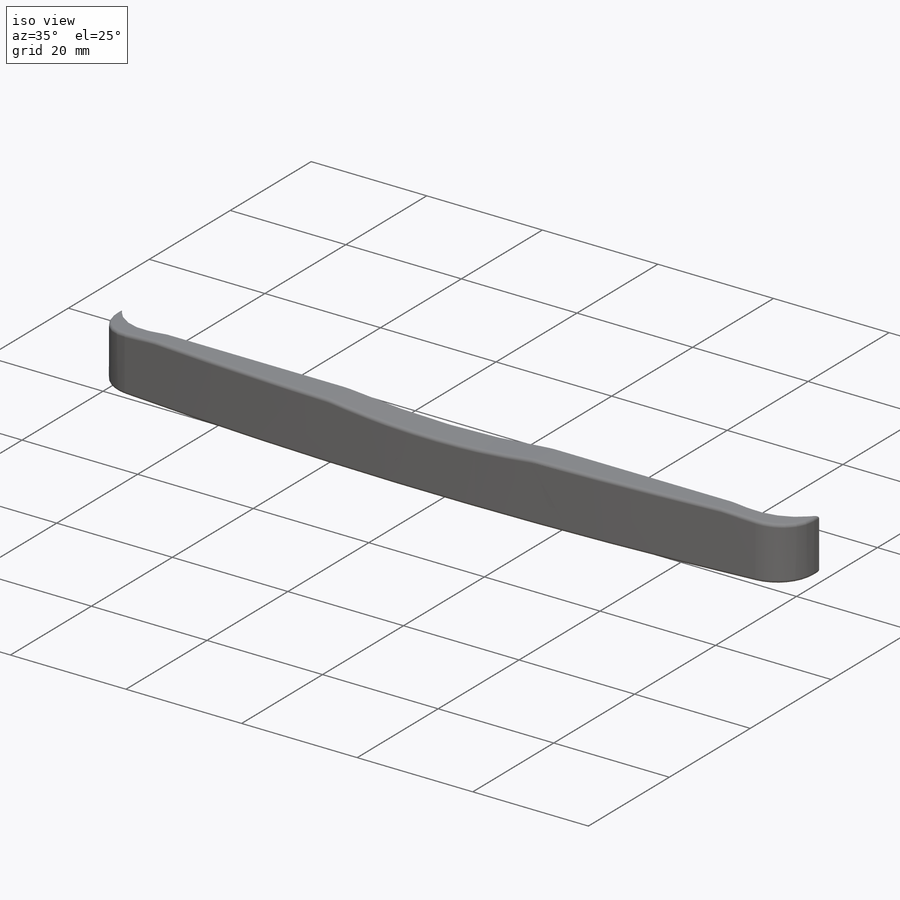
[diagram: iso view]
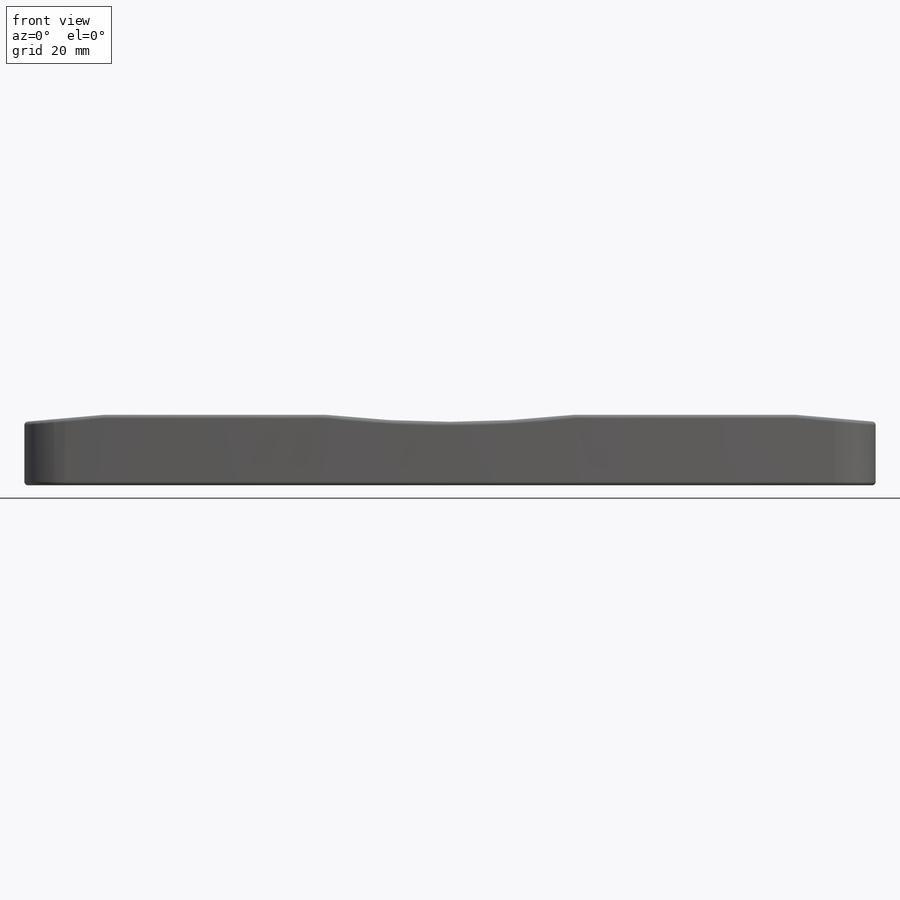
[diagram: front view]
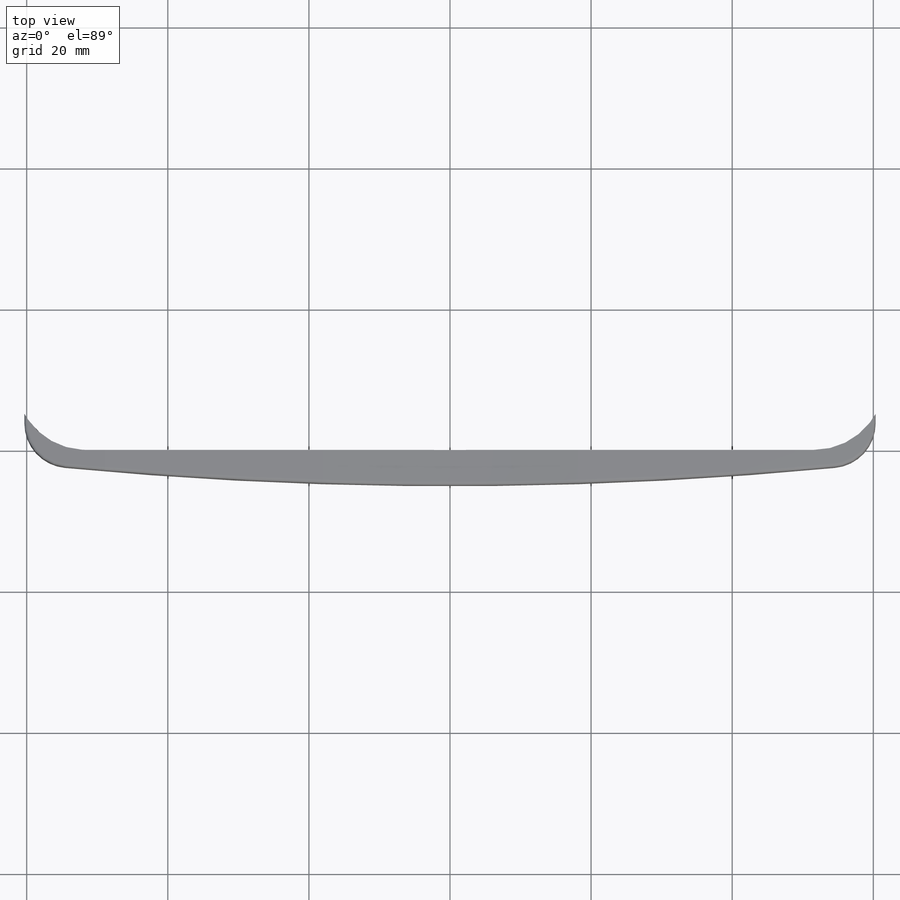
[diagram: top view]
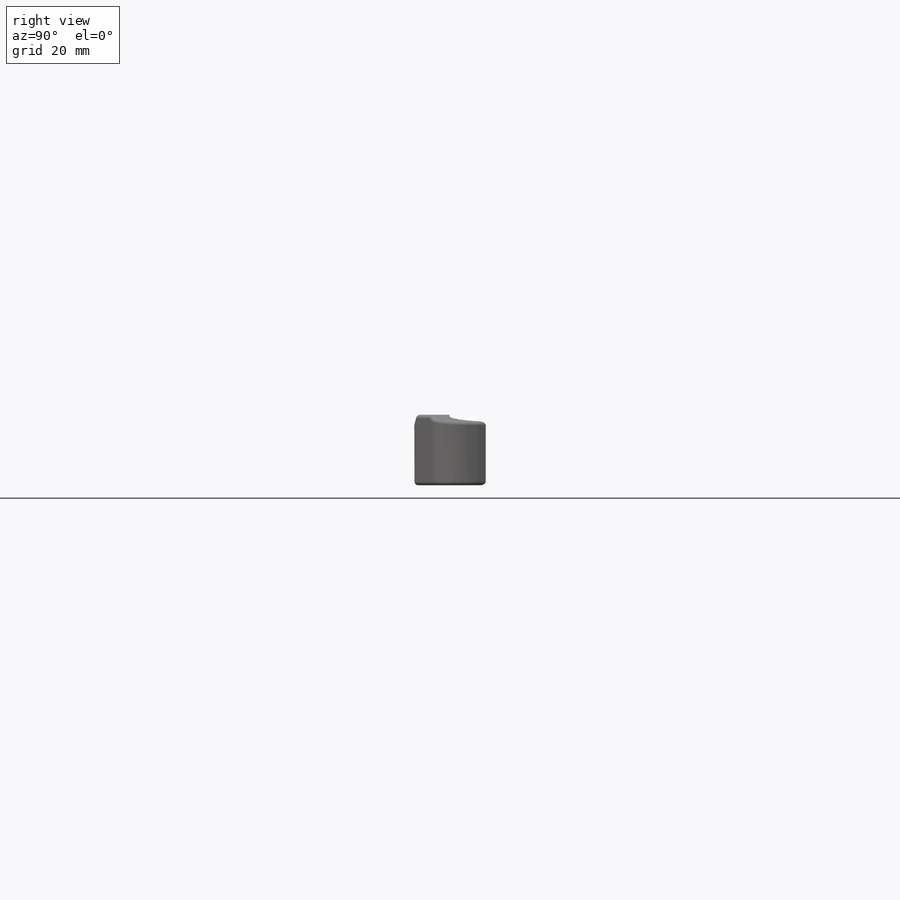
[diagram: right view]
SOLIDWORKS PART (.sldprt)
format: sldprt  version: not decoded by parser v0  size: 240,640 bytes
history: native  units: mm
features: fillet x3, sketch x2, material x1, extrude x1, cut_extrude x1 (+16 scaffold rows collapsed)
feature tree (24):
  scaffold x16  (default folders/planes/origin — collapsed)
  material  "Material <not specified>"
  sketch  "Sketch1"  dims[c1.D3=~445.155254mm c1.D5=10.0mm c1.D6=575.0mm c1.D1=120.65mm c1.D2=6.35mm c2.D3=5.0mm c2.D4=61.595mm c2.D1=120.65mm]
  extrude  "Extrude1"  Depth=10mm
  fillet  "Fillet1"  Radius=6.35mm
  sketch  "Sketch4"  dims[c1.D3=6.35mm c1.D1=9.0mm c1.D2=36.83mm c1.D4=35.0mm c2.D2=~109.156145mm c3.D2=5.0deg c3.D1=9.0mm]
  cut_extrude  "Cut-Extrude1"  [1 undecoded]
  fillet  "Fillet3"  Radius=10mm
  fillet  "Fillet2"  Radius=0.508mm
decode coverage: 6 of 7 modeling features carry decoded parameters
note: ~ marks probable driven/reference dimensions
note: 1 parameter value undecoded
note: suppression state not decoded; provenance and decode notes live in map.json
